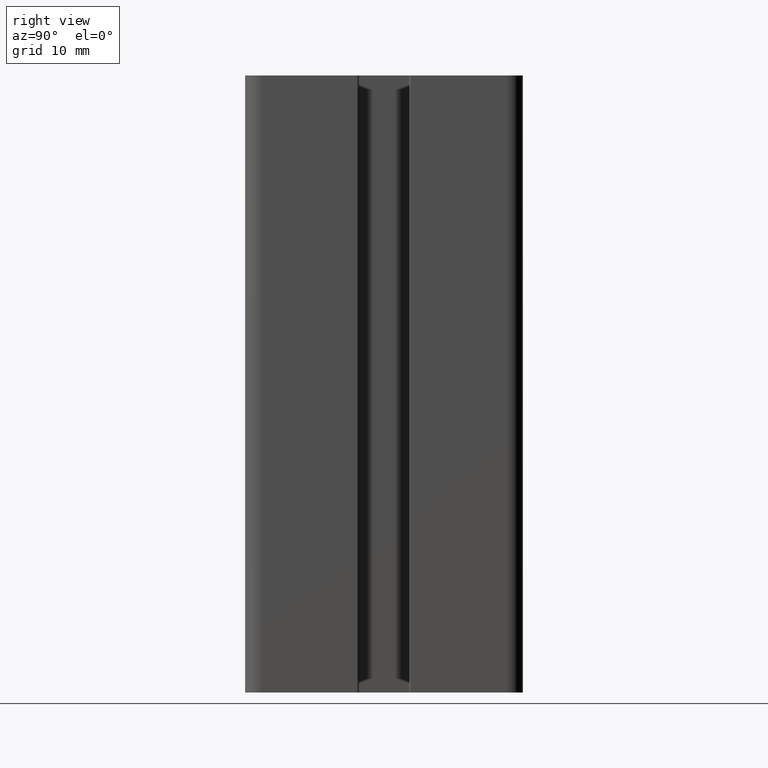
[diagram: clean part render]
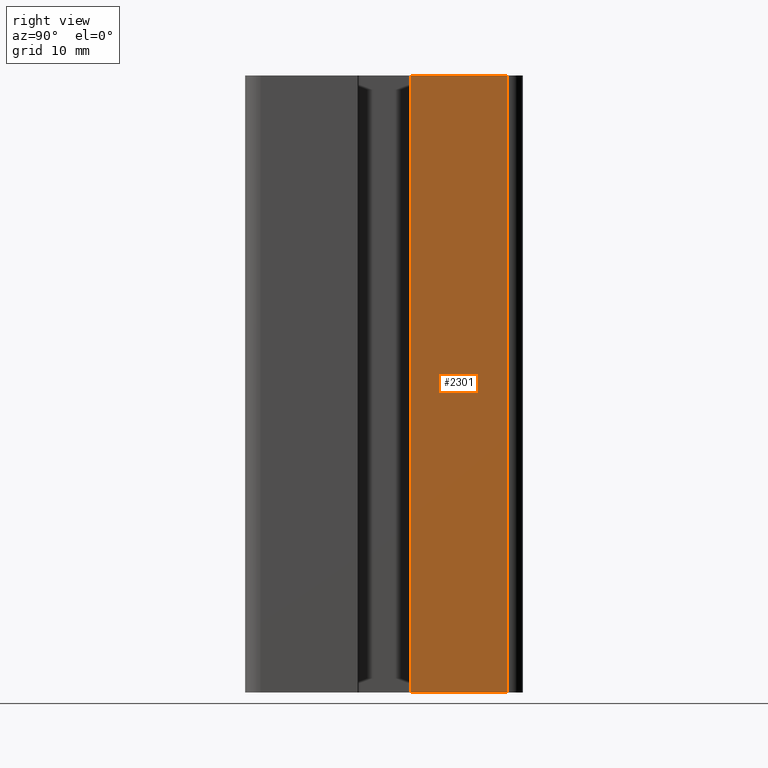
[diagram: same view with one face highlighted and labeled with its STEP entity id]
A machine part, right view. The second image highlights one B-rep face of the part: STEP entity #2301.
In plain terms, the highlighted planar face has unit normal (1, 0, 0).
Its self-contained STEP definition (entity closure, byte-faithful):
#296=FACE_OUTER_BOUND('',#416,.T.);
#416=EDGE_LOOP('',(#2009,#2010,#2011,#2012));
#590=LINE('',#3691,#822);
#642=LINE('',#3847,#874);
#652=LINE('',#3877,#884);
#653=LINE('',#3880,#885);
#822=VECTOR('',#3004,100.);
#874=VECTOR('',#3160,15.65);
#884=VECTOR('',#3194,100.);
#885=VECTOR('',#3199,15.65);
#1049=VERTEX_POINT('',#3685);
#1051=VERTEX_POINT('',#3689);
#1103=VERTEX_POINT('',#3846);
#1111=VERTEX_POINT('',#3876);
#1354=EDGE_CURVE('',#1049,#1051,#590,.T.);
#1432=EDGE_CURVE('',#1103,#1049,#642,.T.);
#1447=EDGE_CURVE('',#1111,#1103,#652,.T.);
#1449=EDGE_CURVE('',#1111,#1051,#653,.T.);
#2009=ORIENTED_EDGE('',*,*,#1354,.T.);
#2010=ORIENTED_EDGE('',*,*,#1449,.F.);
#2011=ORIENTED_EDGE('',*,*,#1447,.T.);
#2012=ORIENTED_EDGE('',*,*,#1432,.T.);
#2186=PLANE('',#2524);
#2301=ADVANCED_FACE('',(#296),#2186,.T.);
#2524=AXIS2_PLACEMENT_3D('',#3879,#3197,#3198);
#3004=DIRECTION('',(0.,0.,-1.));
#3160=DIRECTION('',(1.11022302462516E-16,-1.,0.));
#3194=DIRECTION('',(0.,0.,1.));
#3197=DIRECTION('center_axis',(1.,1.11022302462516E-16,0.));
#3198=DIRECTION('ref_axis',(0.,1.,0.));
#3199=DIRECTION('',(1.11022302462516E-16,-1.,0.));
#3685=CARTESIAN_POINT('',(22.5,4.35,100.));
#3689=CARTESIAN_POINT('',(22.5,4.35,0.));
#3691=CARTESIAN_POINT('',(22.5,4.35,0.));
#3846=CARTESIAN_POINT('',(22.5,20.,100.));
#3847=CARTESIAN_POINT('',(22.5,-10.,100.));
#3876=CARTESIAN_POINT('',(22.5,20.,0.));
#3877=CARTESIAN_POINT('',(22.5,20.,0.));
#3879=CARTESIAN_POINT('Origin',(22.5,-20.,0.));
#3880=CARTESIAN_POINT('',(22.5,-10.,0.));